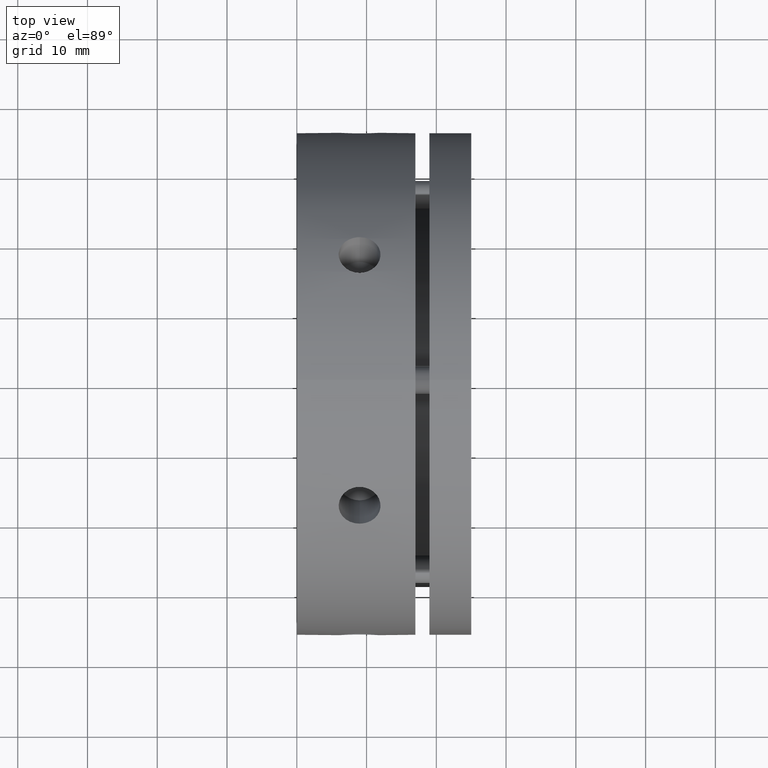
[diagram: clean part render]
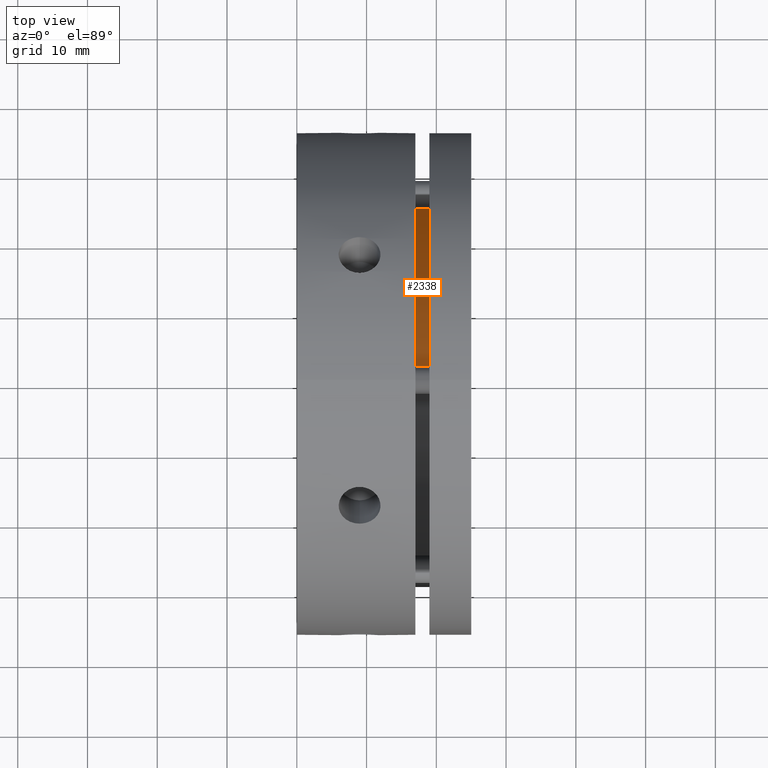
[diagram: same view with one face highlighted and labeled with its STEP entity id]
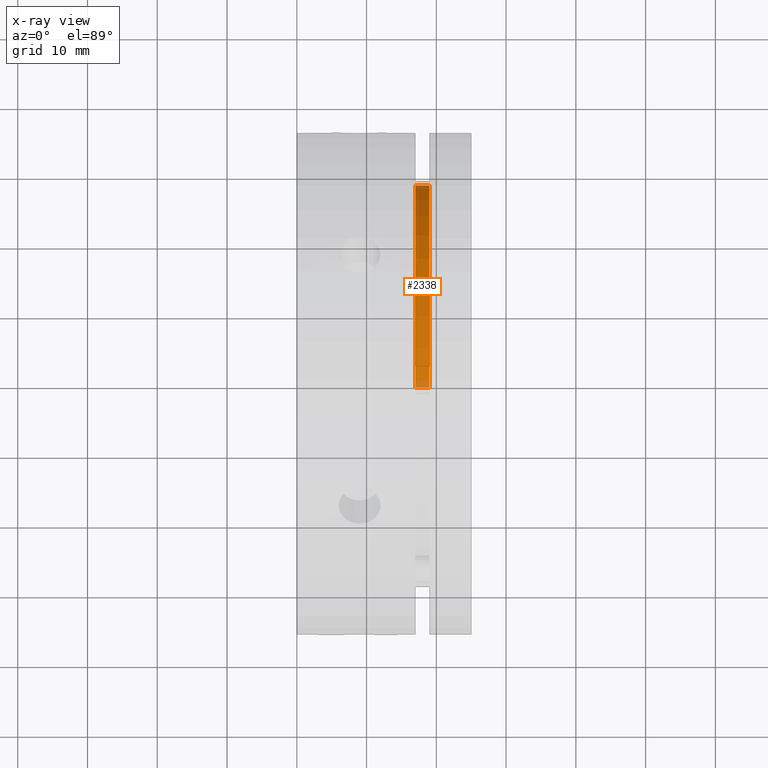
[diagram: x-ray of the same camera — body ghosted, the highlighted face saturated]
A machine part, top view. The second image highlights one B-rep face of the part: STEP entity #2338.
The next image is the same camera in x-ray: the body ghosted, the highlighted face saturated — about 5% of this face is hidden behind the body in this view.
In plain terms, the highlighted cylindrical surface (partial cylindrical patch) has radius 28.5 mm, axis along (-1, 0, 0).
Its self-contained STEP definition (entity closure, byte-faithful):
#212 = EDGE_LOOP ( 'NONE', ( #1359, #1358, #1357, #1356 ) ) ;
#607 = CIRCLE ( 'NONE', #886, 28.50000000000000700 ) ;
#614 = LINE ( 'NONE', #1735, #617 ) ;
#616 = CIRCLE ( 'NONE', #890, 28.50000000000000700 ) ;
#617 = VECTOR ( 'NONE', #1730, 1000.000000000000000 ) ;
#886 = AXIS2_PLACEMENT_3D ( 'NONE', #1722, #1723, #1724 ) ;
#890 = AXIS2_PLACEMENT_3D ( 'NONE', #1741, #1742, #1743 ) ;
#915 = EDGE_CURVE ( 'NONE', #1075, #1076, #607, .T. ) ;
#920 = EDGE_CURVE ( 'NONE', #1088, #1075, #614, .T. ) ;
#921 = EDGE_CURVE ( 'NONE', #1082, #1088, #616, .T. ) ;
#1075 = VERTEX_POINT ( 'NONE', #2024 ) ;
#1076 = VERTEX_POINT ( 'NONE', #2025 ) ;
#1082 = VERTEX_POINT ( 'NONE', #2031 ) ;
#1088 = VERTEX_POINT ( 'NONE', #2037 ) ;
#1356 = ORIENTED_EDGE ( 'NONE', *, *, #2281, .F. ) ;
#1357 = ORIENTED_EDGE ( 'NONE', *, *, #915, .T. ) ;
#1358 = ORIENTED_EDGE ( 'NONE', *, *, #920, .T. ) ;
#1359 = ORIENTED_EDGE ( 'NONE', *, *, #921, .T. ) ;
#1722 = CARTESIAN_POINT ( 'NONE',  ( 16.99999999999999600, 0.0000000000000000000, 0.0000000000000000000 ) ) ;
#1723 = DIRECTION ( 'NONE',  ( 1.000000000000000000, -0.0000000000000000000, -0.0000000000000000000 ) ) ;
#1724 = DIRECTION ( 'NONE',  ( 0.0000000000000000000, 0.0000000000000000000, 1.000000000000000000 ) ) ;
#1730 = DIRECTION ( 'NONE',  ( -1.000000000000000000, 0.0000000000000000000, 0.0000000000000000000 ) ) ;
#1735 = CARTESIAN_POINT ( 'NONE',  ( 18.00000000000000400, 3.490243377569957200E-015, -28.50000000000000700 ) ) ;
#1741 = CARTESIAN_POINT ( 'NONE',  ( 18.99999999999999600, 0.0000000000000000000, 0.0000000000000000000 ) ) ;
#1742 = DIRECTION ( 'NONE',  ( -1.000000000000000000, 0.0000000000000000000, 0.0000000000000000000 ) ) ;
#1743 = DIRECTION ( 'NONE',  ( 0.0000000000000000000, 0.0000000000000000000, 1.000000000000000000 ) ) ;
#2024 = CARTESIAN_POINT ( 'NONE',  ( 16.99999999999999600, 3.490243377569957200E-015, -28.50000000000000700 ) ) ;
#2025 = CARTESIAN_POINT ( 'NONE',  ( 16.99999999999999600, 0.0000000000000000000, 28.50000000000000700 ) ) ;
#2031 = CARTESIAN_POINT ( 'NONE',  ( 18.99999999999999600, 0.0000000000000000000, 28.50000000000000700 ) ) ;
#2037 = CARTESIAN_POINT ( 'NONE',  ( 18.99999999999999600, 3.490243377569957200E-015, -28.50000000000000700 ) ) ;
#2281 = EDGE_CURVE ( 'NONE', #1082, #1076, #3618, .T. ) ;
#2338 = ADVANCED_FACE ( 'NONE', ( #3687 ), #3696, .T. ) ;
#3116 = CARTESIAN_POINT ( 'NONE',  ( 18.00000000000000400, 0.0000000000000000000, 28.50000000000000700 ) ) ;
#3117 = DIRECTION ( 'NONE',  ( -1.000000000000000000, 0.0000000000000000000, 0.0000000000000000000 ) ) ;
#3245 = DIRECTION ( 'NONE',  ( 0.0000000000000000000, 0.0000000000000000000, 1.000000000000000000 ) ) ;
#3247 = DIRECTION ( 'NONE',  ( -1.000000000000000000, 0.0000000000000000000, 0.0000000000000000000 ) ) ;
#3249 = CARTESIAN_POINT ( 'NONE',  ( 18.00000000000000400, 0.0000000000000000000, 0.0000000000000000000 ) ) ;
#3618 = LINE ( 'NONE', #3116, #3620 ) ;
#3620 = VECTOR ( 'NONE', #3117, 1000.000000000000000 ) ;
#3687 = FACE_OUTER_BOUND ( 'NONE', #212, .T. ) ;
#3696 = CYLINDRICAL_SURFACE ( 'NONE', #3878, 28.50000000000000700 ) ;
#3878 = AXIS2_PLACEMENT_3D ( 'NONE', #3249, #3247, #3245 ) ;